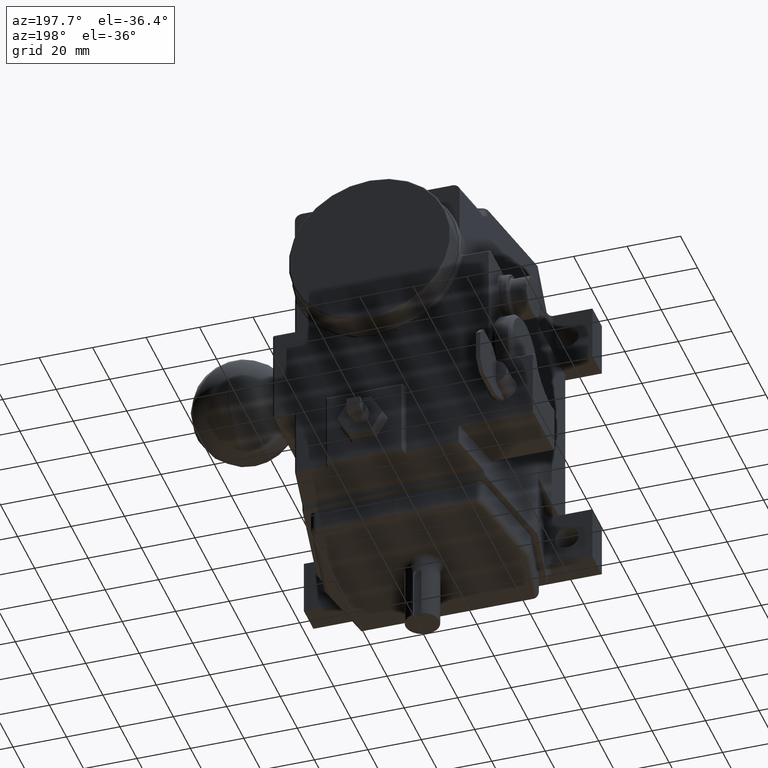
[diagram: clean part render]
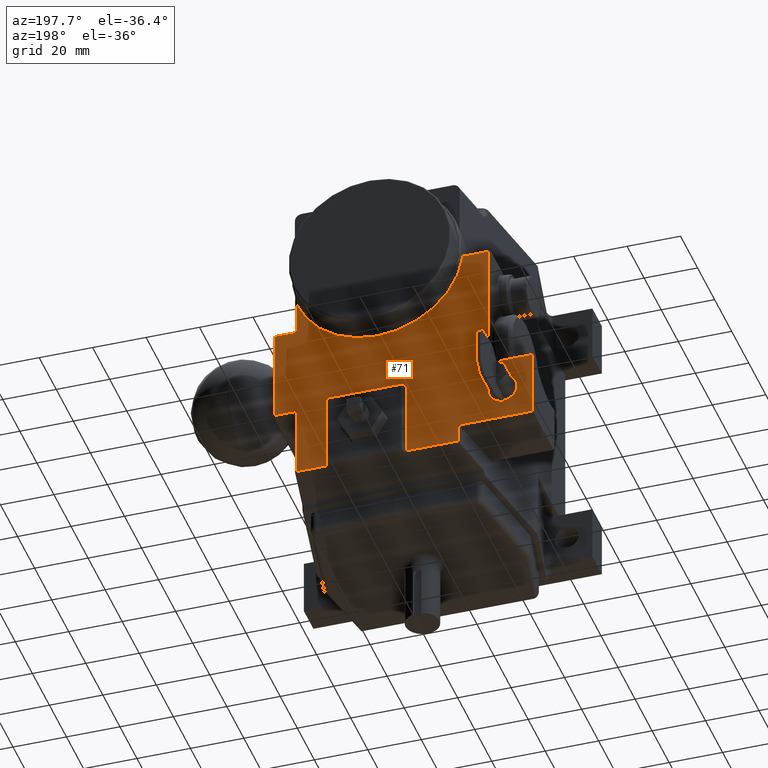
[diagram: same view with one face highlighted and labeled with its STEP entity id]
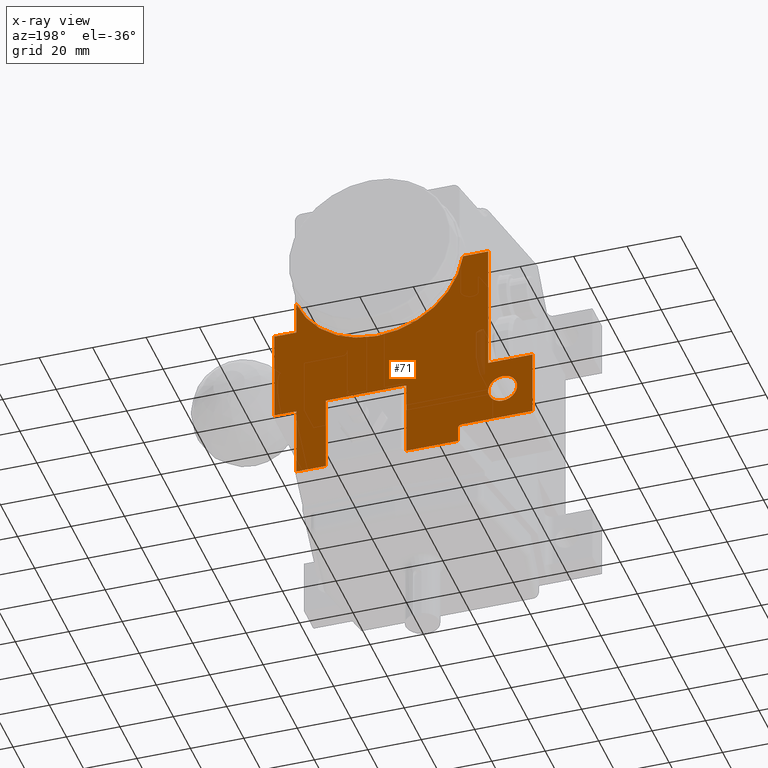
[diagram: x-ray of the same camera — body ghosted, the highlighted face saturated]
A machine part, auxiliary view. The second image highlights one B-rep face of the part: STEP entity #71.
The next image is the same camera in x-ray: the body ghosted, the highlighted face saturated — about 1% of this face is hidden behind the body in this view.
In plain terms, the highlighted planar face has unit normal (0, 1, 0).
Its self-contained STEP definition (entity closure, byte-faithful):
#71 = ADVANCED_FACE ( 'NONE', ( #3055, #3061 ), #7358, .T. ) ;
#286 = EDGE_LOOP ( 'NONE', ( #1038, #1039 ) ) ;
#295 = EDGE_LOOP ( 'NONE', ( #1040, #1041, #1042, #1043, #1044, #1045, #1046, #1047, #1048, #1049, #1050, #1051, #1052, #1053, #1054, #1055, #1056, #1057 ) ) ;
#559 = EDGE_CURVE ( 'NONE', #10052, #10051, #3227, .T. ) ;
#560 = EDGE_CURVE ( 'NONE', #10054, #10056, #3248, .T. ) ;
#561 = EDGE_CURVE ( 'NONE', #9973, #9974, #3264, .T. ) ;
#562 = EDGE_CURVE ( 'NONE', #10055, #10054, #3263, .T. ) ;
#563 = EDGE_CURVE ( 'NONE', #10056, #10052, #3265, .T. ) ;
#564 = EDGE_CURVE ( 'NONE', #10051, #10050, #3267, .T. ) ;
#565 = EDGE_CURVE ( 'NONE', #10050, #10049, #3269, .T. ) ;
#566 = EDGE_CURVE ( 'NONE', #10049, #10048, #3271, .T. ) ;
#567 = EDGE_CURVE ( 'NONE', #10047, #10048, #2694, .T. ) ;
#568 = EDGE_CURVE ( 'NONE', #10047, #10046, #3274, .T. ) ;
#569 = EDGE_CURVE ( 'NONE', #10046, #10045, #3276, .T. ) ;
#570 = EDGE_CURVE ( 'NONE', #10045, #10044, #3278, .T. ) ;
#571 = EDGE_CURVE ( 'NONE', #10044, #10043, #3280, .T. ) ;
#572 = EDGE_CURVE ( 'NONE', #10043, #10042, #3282, .T. ) ;
#573 = EDGE_CURVE ( 'NONE', #10042, #10041, #3285, .T. ) ;
#574 = EDGE_CURVE ( 'NONE', #10041, #10040, #3261, .T. ) ;
#575 = EDGE_CURVE ( 'NONE', #10040, #10039, #3286, .T. ) ;
#576 = EDGE_CURVE ( 'NONE', #10039, #10038, #3288, .T. ) ;
#577 = EDGE_CURVE ( 'NONE', #10038, #10055, #3290, .T. ) ;
#613 = EDGE_CURVE ( 'NONE', #9974, #9973, #3333, .T. ) ;
#1038 = ORIENTED_EDGE ( 'NONE', *, *, #613, .T. ) ;
#1039 = ORIENTED_EDGE ( 'NONE', *, *, #561, .T. ) ;
#1040 = ORIENTED_EDGE ( 'NONE', *, *, #562, .T. ) ;
#1041 = ORIENTED_EDGE ( 'NONE', *, *, #560, .T. ) ;
#1042 = ORIENTED_EDGE ( 'NONE', *, *, #563, .T. ) ;
#1043 = ORIENTED_EDGE ( 'NONE', *, *, #559, .T. ) ;
#1044 = ORIENTED_EDGE ( 'NONE', *, *, #564, .T. ) ;
#1045 = ORIENTED_EDGE ( 'NONE', *, *, #565, .T. ) ;
#1046 = ORIENTED_EDGE ( 'NONE', *, *, #566, .T. ) ;
#1047 = ORIENTED_EDGE ( 'NONE', *, *, #567, .F. ) ;
#1048 = ORIENTED_EDGE ( 'NONE', *, *, #568, .T. ) ;
#1049 = ORIENTED_EDGE ( 'NONE', *, *, #569, .T. ) ;
#1050 = ORIENTED_EDGE ( 'NONE', *, *, #570, .T. ) ;
#1051 = ORIENTED_EDGE ( 'NONE', *, *, #571, .T. ) ;
#1052 = ORIENTED_EDGE ( 'NONE', *, *, #572, .T. ) ;
#1053 = ORIENTED_EDGE ( 'NONE', *, *, #573, .T. ) ;
#1054 = ORIENTED_EDGE ( 'NONE', *, *, #574, .T. ) ;
#1055 = ORIENTED_EDGE ( 'NONE', *, *, #575, .T. ) ;
#1056 = ORIENTED_EDGE ( 'NONE', *, *, #576, .T. ) ;
#1057 = ORIENTED_EDGE ( 'NONE', *, *, #577, .T. ) ;
#2256 = AXIS2_PLACEMENT_3D ( 'NONE', #7355, #4668, #4667 ) ;
#2391 = AXIS2_PLACEMENT_3D ( 'NONE', #3965, #3968, #3969 ) ;
#2395 = AXIS2_PLACEMENT_3D ( 'NONE', #3981, #3995, #3996 ) ;
#2421 = AXIS2_PLACEMENT_3D ( 'NONE', #4103, #4104, #4105 ) ;
#2694 =( BOUNDED_CURVE ( )  B_SPLINE_CURVE ( 3, ( #3967, #3982, #3983, #3984 ),
 .UNSPECIFIED., .F., .F. ) 
 B_SPLINE_CURVE_WITH_KNOTS ( ( 4, 4 ),
 ( 1.570796326794896600, 3.141592653589793100 ),
 .UNSPECIFIED. ) 
 CURVE ( )  GEOMETRIC_REPRESENTATION_ITEM ( )  RATIONAL_B_SPLINE_CURVE ( ( 1.000000000000000000, 0.8047378541243649400, 0.8047378541243649400, 1.000000000000000000 ) ) 
 REPRESENTATION_ITEM ( '' )  );
#3055 = FACE_BOUND ( 'NONE', #286, .T. ) ;
#3061 = FACE_OUTER_BOUND ( 'NONE', #295, .T. ) ;
#3227 = LINE ( 'NONE', #3960, #3258 ) ;
#3248 = LINE ( 'NONE', #3962, #3260 ) ;
#3258 = VECTOR ( 'NONE', #3964, 39.37007874015748100 ) ;
#3259 = VECTOR ( 'NONE', #3971, 39.37007874015748100 ) ;
#3260 = VECTOR ( 'NONE', #3966, 39.37007874015748100 ) ;
#3261 = LINE ( 'NONE', #3997, #3273 ) ;
#3262 = VECTOR ( 'NONE', #3985, 39.37007874015748100 ) ;
#3263 = LINE ( 'NONE', #3963, #3259 ) ;
#3264 = CIRCLE ( 'NONE', #2391, 0.2125000000000002700 ) ;
#3265 = LINE ( 'NONE', #3972, #3266 ) ;
#3266 = VECTOR ( 'NONE', #3973, 39.37007874015748100 ) ;
#3267 = LINE ( 'NONE', #3974, #3268 ) ;
#3268 = VECTOR ( 'NONE', #3975, 39.37007874015748100 ) ;
#3269 = LINE ( 'NONE', #3976, #3270 ) ;
#3270 = VECTOR ( 'NONE', #3977, 39.37007874015748100 ) ;
#3271 = LINE ( 'NONE', #3978, #3272 ) ;
#3272 = VECTOR ( 'NONE', #3979, 39.37007874015748100 ) ;
#3273 = VECTOR ( 'NONE', #3998, 39.37007874015748100 ) ;
#3274 = LINE ( 'NONE', #3980, #3262 ) ;
#3276 = LINE ( 'NONE', #3986, #3277 ) ;
#3277 = VECTOR ( 'NONE', #3987, 39.37007874015748100 ) ;
#3278 = LINE ( 'NONE', #3988, #3279 ) ;
#3279 = VECTOR ( 'NONE', #3989, 39.37007874015748100 ) ;
#3280 = LINE ( 'NONE', #3990, #3281 ) ;
#3281 = VECTOR ( 'NONE', #3991, 39.37007874015748100 ) ;
#3282 = LINE ( 'NONE', #3992, #3283 ) ;
#3283 = VECTOR ( 'NONE', #3993, 39.37007874015748100 ) ;
#3285 = CIRCLE ( 'NONE', #2395, 1.274999999999999900 ) ;
#3286 = LINE ( 'NONE', #3999, #3287 ) ;
#3287 = VECTOR ( 'NONE', #4000, 39.37007874015748100 ) ;
#3288 = LINE ( 'NONE', #4001, #3289 ) ;
#3289 = VECTOR ( 'NONE', #4002, 39.37007874015748100 ) ;
#3290 = LINE ( 'NONE', #4003, #3291 ) ;
#3291 = VECTOR ( 'NONE', #4004, 39.37007874015748100 ) ;
#3333 = CIRCLE ( 'NONE', #2421, 0.2125000000000002700 ) ;
#3960 = CARTESIAN_POINT ( 'NONE',  ( -1.660000000000000400, 3.712500000000000400, -1.099248256349574700 ) ) ;
#3962 = CARTESIAN_POINT ( 'NONE',  ( 0.7312440276021410200, 3.712500000000000400, -2.237499999999999400 ) ) ;
#3963 = CARTESIAN_POINT ( 'NONE',  ( 1.191403294162054700, 3.712500000000000400, -1.212500000000000400 ) ) ;
#3964 = DIRECTION ( 'NONE',  ( -1.000000000000000000, -0.0000000000000000000, -0.0000000000000000000 ) ) ;
#3965 = CARTESIAN_POINT ( 'NONE',  ( -1.847500000000000400, 3.712500000000000400, -1.468615992150296100 ) ) ;
#3966 = DIRECTION ( 'NONE',  ( -1.000000000000000000, -0.0000000000000000000, 1.285575526430242400E-016 ) ) ;
#3967 = CARTESIAN_POINT ( 'NONE',  ( -1.242193155278425300, 3.712500000000000400, -1.962500000000000400 ) ) ;
#3968 = DIRECTION ( 'NONE',  ( -0.0000000000000000000, -1.000000000000000000, -0.0000000000000000000 ) ) ;
#3969 = DIRECTION ( 'NONE',  ( 0.0000000000000000000, 0.0000000000000000000, 1.000000000000000000 ) ) ;
#3971 = DIRECTION ( 'NONE',  ( -0.0000000000000000000, -0.0000000000000000000, -1.000000000000000000 ) ) ;
#3972 = CARTESIAN_POINT ( 'NONE',  ( 0.7562440276021409300, 3.712500000000000400, -1.212500000000000600 ) ) ;
#3973 = DIRECTION ( 'NONE',  ( 1.200019243942952900E-016, -0.0000000000000000000, 1.000000000000000000 ) ) ;
#3974 = CARTESIAN_POINT ( 'NONE',  ( -0.4320077160482840300, 3.712500000000000400, -1.212500000000000400 ) ) ;
#3975 = DIRECTION ( 'NONE',  ( -1.200019243942953700E-016, -0.0000000000000000000, -1.000000000000000000 ) ) ;
#3976 = CARTESIAN_POINT ( 'NONE',  ( -1.212337003132482900, 3.712500000000000400, -2.237499999999999400 ) ) ;
#3977 = DIRECTION ( 'NONE',  ( -1.000000000000000000, -0.0000000000000000000, 1.285575526430242400E-016 ) ) ;
#3978 = CARTESIAN_POINT ( 'NONE',  ( -1.191403294162054500, 3.712500000000000400, -1.212500000000000400 ) ) ;
#3979 = DIRECTION ( 'NONE',  ( 0.0000000000000000000, 0.0000000000000000000, 1.000000000000000000 ) ) ;
#3980 = CARTESIAN_POINT ( 'NONE',  ( -2.312500000000000000, 3.712500000000000400, -1.962500000000000400 ) ) ;
#3981 = CARTESIAN_POINT ( 'NONE',  ( 0.0000000000000000000, 3.712500000000000400, 1.136267889599041700 ) ) ;
#3982 = CARTESIAN_POINT ( 'NONE',  ( -1.212441143467500900, 3.712499999999999900, -1.962500000000000100 ) ) ;
#3983 = CARTESIAN_POINT ( 'NONE',  ( -1.191403294162054000, 3.712499999999999900, -1.983210678118654700 ) ) ;
#3984 = CARTESIAN_POINT ( 'NONE',  ( -1.191403294162054500, 3.712500000000000400, -2.012500000000000200 ) ) ;
#3985 = DIRECTION ( 'NONE',  ( -1.000000000000000000, 0.0000000000000000000, 0.0000000000000000000 ) ) ;
#3986 = CARTESIAN_POINT ( 'NONE',  ( -2.287500000000000100, 3.712500000000000400, -0.8875000000000001800 ) ) ;
#3987 = DIRECTION ( 'NONE',  ( 0.0000000000000000000, 0.0000000000000000000, 1.000000000000000000 ) ) ;
#3988 = CARTESIAN_POINT ( 'NONE',  ( -1.660000000000000400, 3.712500000000000400, -0.9757458044941339500 ) ) ;
#3989 = DIRECTION ( 'NONE',  ( 1.000000000000000000, -0.0000000000000000000, -0.0000000000000000000 ) ) ;
#3990 = CARTESIAN_POINT ( 'NONE',  ( -1.635000000000000500, 3.712500000000000400, 0.9924999999999990500 ) ) ;
#3991 = DIRECTION ( 'NONE',  ( 0.0000000000000000000, 0.0000000000000000000, 1.000000000000000000 ) ) ;
#3992 = CARTESIAN_POINT ( 'NONE',  ( -1.660000000000000400, 3.712500000000000400, 0.9674999999999989200 ) ) ;
#3993 = DIRECTION ( 'NONE',  ( 1.000000000000000000, -0.0000000000000000000, -0.0000000000000000000 ) ) ;
#3995 = DIRECTION ( 'NONE',  ( -0.0000000000000000000, -1.000000000000000000, -0.0000000000000000000 ) ) ;
#3996 = DIRECTION ( 'NONE',  ( 0.0000000000000000000, 0.0000000000000000000, 1.000000000000000000 ) ) ;
#3997 = CARTESIAN_POINT ( 'NONE',  ( 1.191403294162054700, 3.712500000000000400, -1.212500000000000400 ) ) ;
#3998 = DIRECTION ( 'NONE',  ( -0.0000000000000000000, -0.0000000000000000000, -1.000000000000000000 ) ) ;
#3999 = CARTESIAN_POINT ( 'NONE',  ( -1.660000000000000400, 3.712500000000000400, 0.1875000000000001100 ) ) ;
#4000 = DIRECTION ( 'NONE',  ( 1.000000000000000000, 0.0000000000000000000, 0.0000000000000000000 ) ) ;
#4001 = CARTESIAN_POINT ( 'NONE',  ( 1.514999999999999500, 3.712500000000000400, -1.212500000000000400 ) ) ;
#4002 = DIRECTION ( 'NONE',  ( -0.0000000000000000000, -0.0000000000000000000, -1.000000000000000000 ) ) ;
#4003 = CARTESIAN_POINT ( 'NONE',  ( -1.660000000000000400, 3.712500000000000400, -1.187500000000000200 ) ) ;
#4004 = DIRECTION ( 'NONE',  ( -1.000000000000000000, -0.0000000000000000000, -0.0000000000000000000 ) ) ;
#4103 = CARTESIAN_POINT ( 'NONE',  ( -1.847500000000000400, 3.712500000000000400, -1.468615992150296100 ) ) ;
#4104 = DIRECTION ( 'NONE',  ( -0.0000000000000000000, -1.000000000000000000, -0.0000000000000000000 ) ) ;
#4105 = DIRECTION ( 'NONE',  ( 0.0000000000000000000, 0.0000000000000000000, 1.000000000000000000 ) ) ;
#4667 = DIRECTION ( 'NONE',  ( 0.0000000000000000000, -0.0000000000000000000, 1.000000000000000000 ) ) ;
#4668 = DIRECTION ( 'NONE',  ( 0.0000000000000000000, 1.000000000000000000, 0.0000000000000000000 ) ) ;
#7355 = CARTESIAN_POINT ( 'NONE',  ( -1.660000000000000400, 3.712500000000000400, -1.212500000000000400 ) ) ;
#7358 = PLANE ( 'NONE',  #2256 ) ;
#9319 = CARTESIAN_POINT ( 'NONE',  ( -1.847500000000000400, 3.712500000000000400, -1.681115992150296500 ) ) ;
#9320 = CARTESIAN_POINT ( 'NONE',  ( -1.847500000000000400, 3.712500000000000400, -1.256115992150296000 ) ) ;
#9390 = CARTESIAN_POINT ( 'NONE',  ( 1.514999999999999500, 3.712500000000000400, -1.187500000000000200 ) ) ;
#9391 = CARTESIAN_POINT ( 'NONE',  ( 1.514999999999999500, 3.712500000000000400, 0.1875000000000001100 ) ) ;
#9392 = CARTESIAN_POINT ( 'NONE',  ( 1.191403294162054500, 3.712500000000000400, 0.1875000000000001100 ) ) ;
#9393 = CARTESIAN_POINT ( 'NONE',  ( 1.191403294162053800, 3.712500000000000400, 0.6821938971046398500 ) ) ;
#9394 = CARTESIAN_POINT ( 'NONE',  ( -1.263780993463774700, 3.712500000000000400, 0.9674999999999990300 ) ) ;
#9395 = CARTESIAN_POINT ( 'NONE',  ( -1.635000000000000500, 3.712500000000000400, 0.9674999999999990300 ) ) ;
#9396 = CARTESIAN_POINT ( 'NONE',  ( -1.635000000000000500, 3.712500000000000400, -0.9757458044941339500 ) ) ;
#9397 = CARTESIAN_POINT ( 'NONE',  ( -2.287500000000000100, 3.712500000000000400, -0.9757458044941339500 ) ) ;
#9398 = CARTESIAN_POINT ( 'NONE',  ( -2.287500000000000100, 3.712500000000000400, -1.962500000000000400 ) ) ;
#9399 = CARTESIAN_POINT ( 'NONE',  ( -1.242193155278425300, 3.712500000000000400, -1.962500000000000400 ) ) ;
#9400 = CARTESIAN_POINT ( 'NONE',  ( -1.191403294162054500, 3.712500000000000400, -2.012500000000000200 ) ) ;
#9401 = CARTESIAN_POINT ( 'NONE',  ( -1.191403294162054500, 3.712500000000000400, -2.237499999999999400 ) ) ;
#9402 = CARTESIAN_POINT ( 'NONE',  ( -0.4320077160482841400, 3.712500000000000400, -2.237499999999999400 ) ) ;
#9403 = CARTESIAN_POINT ( 'NONE',  ( -0.4320077160482840300, 3.712500000000000400, -1.099248256349574700 ) ) ;
#9404 = CARTESIAN_POINT ( 'NONE',  ( 0.7562440276021410400, 3.712500000000000400, -1.099248256349574700 ) ) ;
#9406 = CARTESIAN_POINT ( 'NONE',  ( 1.191403294162054500, 3.712500000000000400, -2.237499999999999400 ) ) ;
#9407 = CARTESIAN_POINT ( 'NONE',  ( 1.191403294162054500, 3.712500000000000400, -1.187500000000000200 ) ) ;
#9408 = CARTESIAN_POINT ( 'NONE',  ( 0.7562440276021409300, 3.712500000000000400, -2.237499999999999400 ) ) ;
#9973 = VERTEX_POINT ( 'NONE', #9319 ) ;
#9974 = VERTEX_POINT ( 'NONE', #9320 ) ;
#10038 = VERTEX_POINT ( 'NONE', #9390 ) ;
#10039 = VERTEX_POINT ( 'NONE', #9391 ) ;
#10040 = VERTEX_POINT ( 'NONE', #9392 ) ;
#10041 = VERTEX_POINT ( 'NONE', #9393 ) ;
#10042 = VERTEX_POINT ( 'NONE', #9394 ) ;
#10043 = VERTEX_POINT ( 'NONE', #9395 ) ;
#10044 = VERTEX_POINT ( 'NONE', #9396 ) ;
#10045 = VERTEX_POINT ( 'NONE', #9397 ) ;
#10046 = VERTEX_POINT ( 'NONE', #9398 ) ;
#10047 = VERTEX_POINT ( 'NONE', #9399 ) ;
#10048 = VERTEX_POINT ( 'NONE', #9400 ) ;
#10049 = VERTEX_POINT ( 'NONE', #9401 ) ;
#10050 = VERTEX_POINT ( 'NONE', #9402 ) ;
#10051 = VERTEX_POINT ( 'NONE', #9403 ) ;
#10052 = VERTEX_POINT ( 'NONE', #9404 ) ;
#10054 = VERTEX_POINT ( 'NONE', #9406 ) ;
#10055 = VERTEX_POINT ( 'NONE', #9407 ) ;
#10056 = VERTEX_POINT ( 'NONE', #9408 ) ;